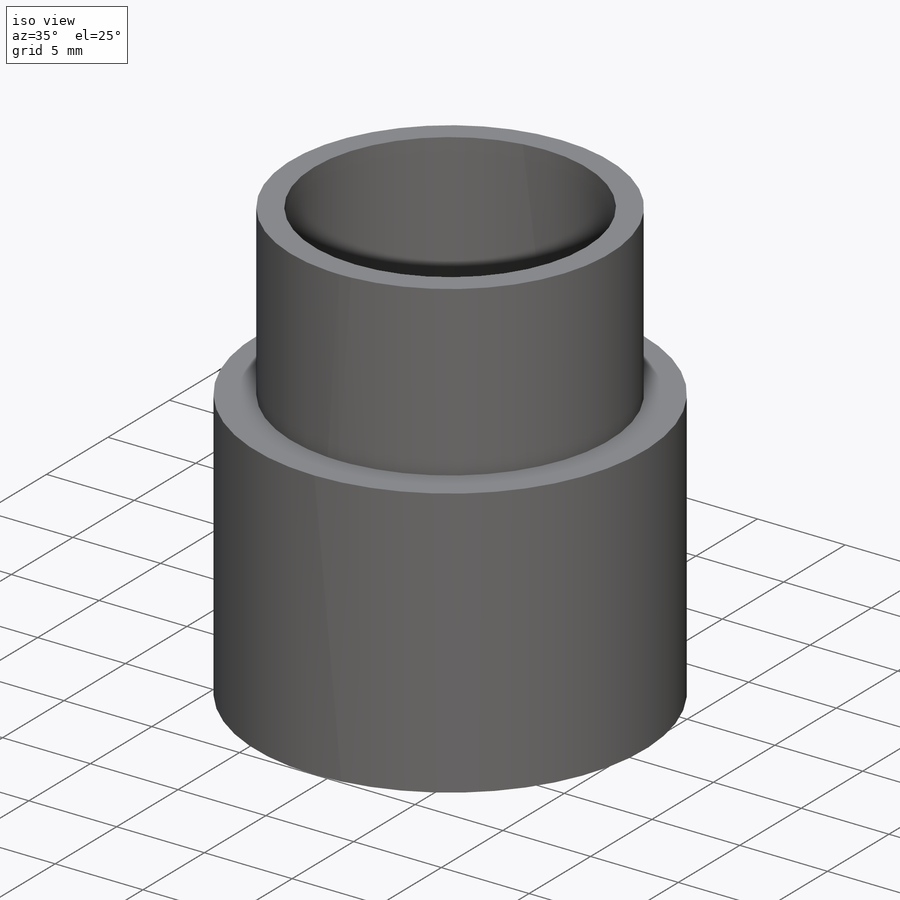
[diagram: iso view]
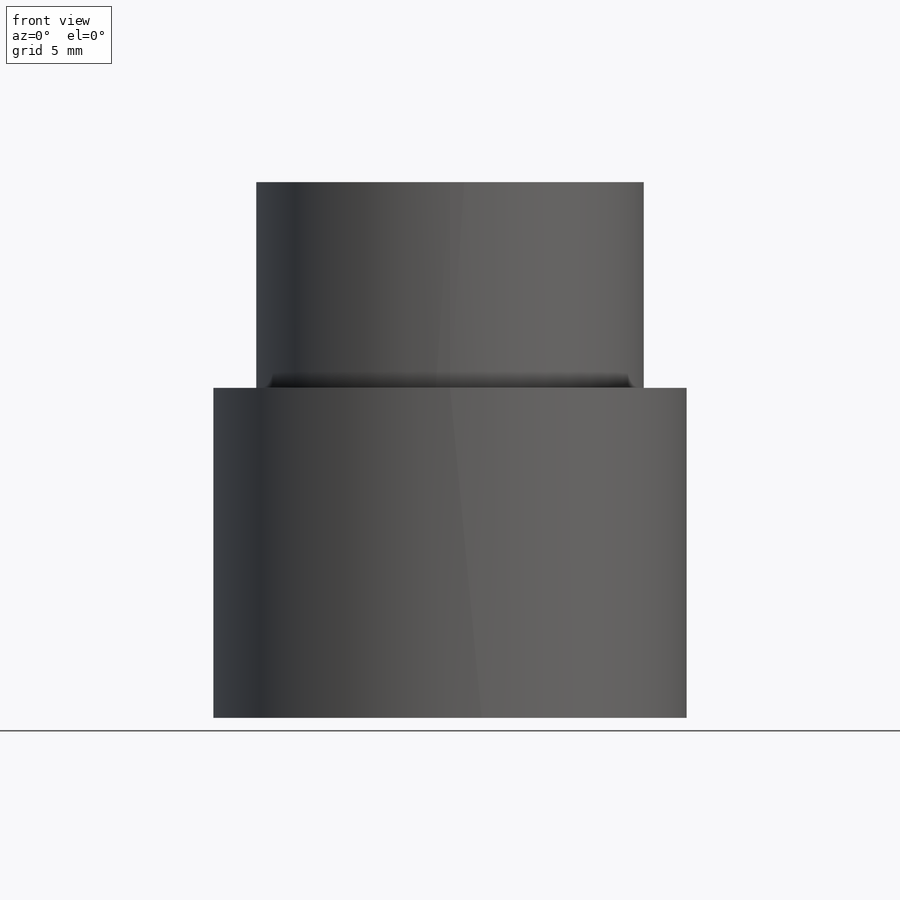
[diagram: front view]
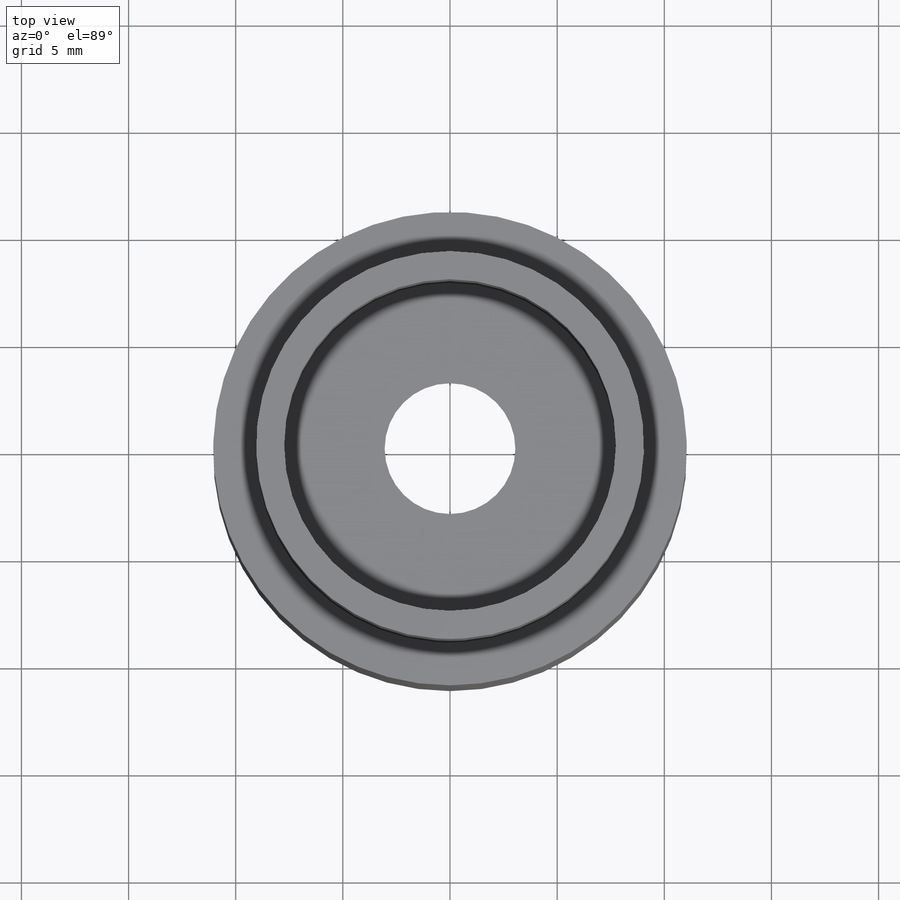
[diagram: top view]
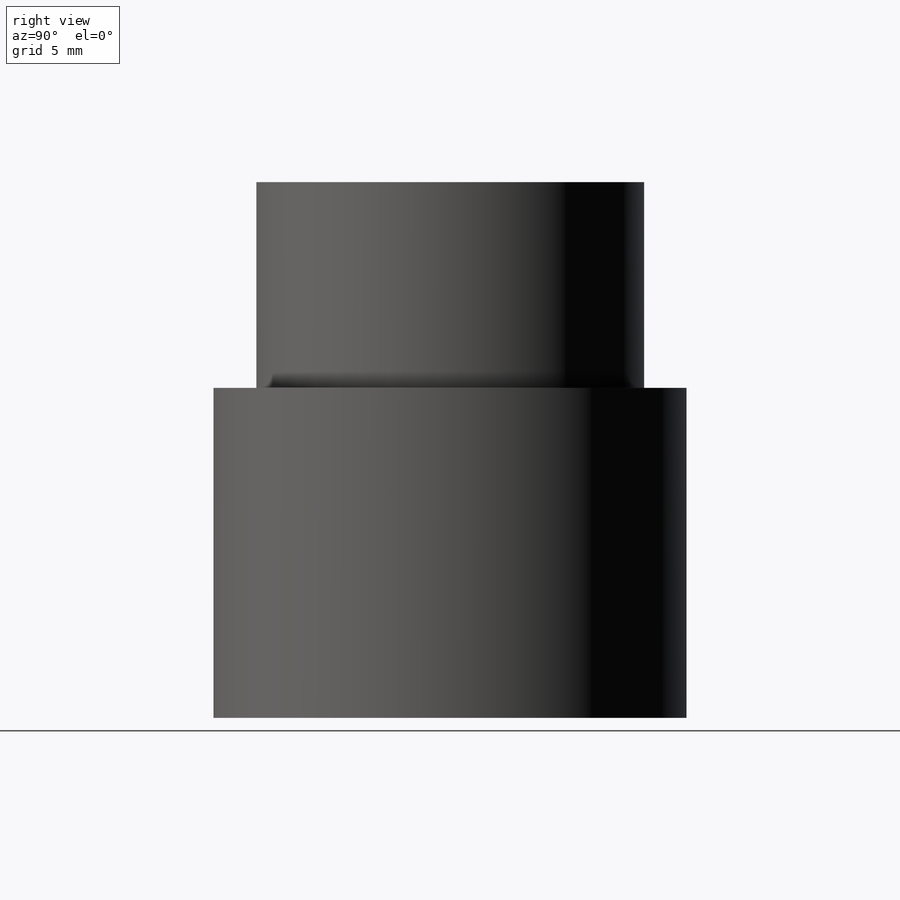
[diagram: right view]
SOLIDWORKS PART (.sldprt)
format: sldprt  version: not decoded by parser v0  size: 177,664 bytes
history: native  units: mm
features: sketch x6, plane x3, extrude x3, cut_extrude x2, material x1, cut_revolve x1 (+9 scaffold rows collapsed)
feature tree (25):
  scaffold x9  (default folders/planes/origin — collapsed)
  material  "Material <sin especificar>"
  plane  "Alzado"
  plane  "Planta"
  plane  "Vista lateral"
  sketch  "Croquis1"  dims[D1=18.1mm D2=2.0mm]
  extrude  "Saliente-Extruir1"  Depth=9.4mm
  sketch  "Croquis2"  dims[D1=0.0mm]
  extrude  "Saliente-Extruir2"  Depth=6mm
  sketch  "Croquis3"  dims[D1=15.48mm D2=18.1mm]
  extrude  "Saliente-Extruir3"  Depth=9.6mm
  sketch  "Croquis4"  dims[D1=6.1mm]
  cut_extrude  "Cortar-Extruir1"  Depth=9.6mm
  sketch  "Croquis5"  dims[D1=0.1mm]
  cut_extrude  "Cortar-Extruir2"  [1 undecoded]
  sketch  "Croquis6"
  cut_revolve  "Cortar-Revolución1"  Angle=360deg
decode coverage: 10 of 12 modeling features carry decoded parameters
note: 1 parameter value undecoded
note: suppression state not decoded; provenance and decode notes live in map.json
